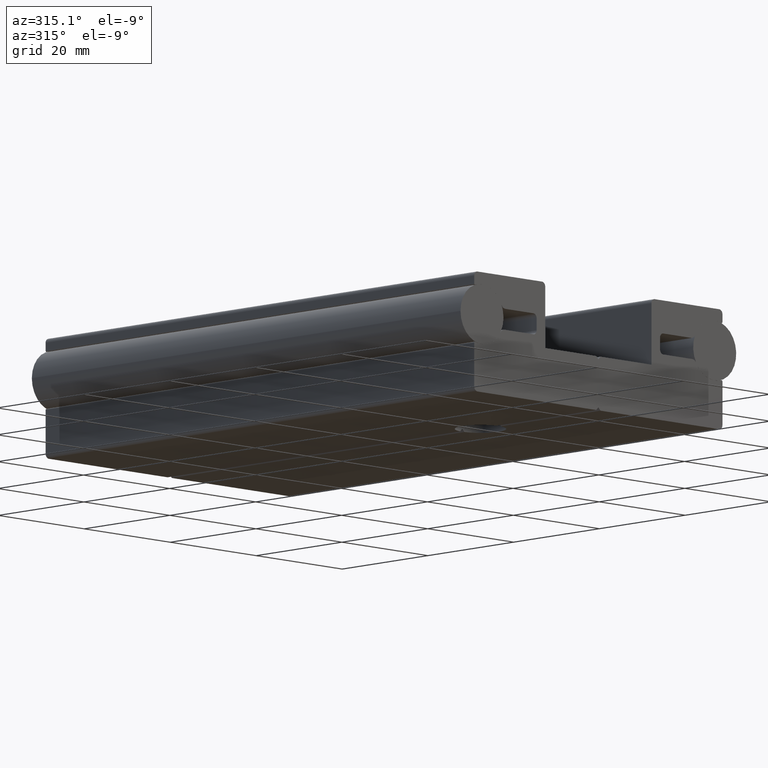
[diagram: clean part render]
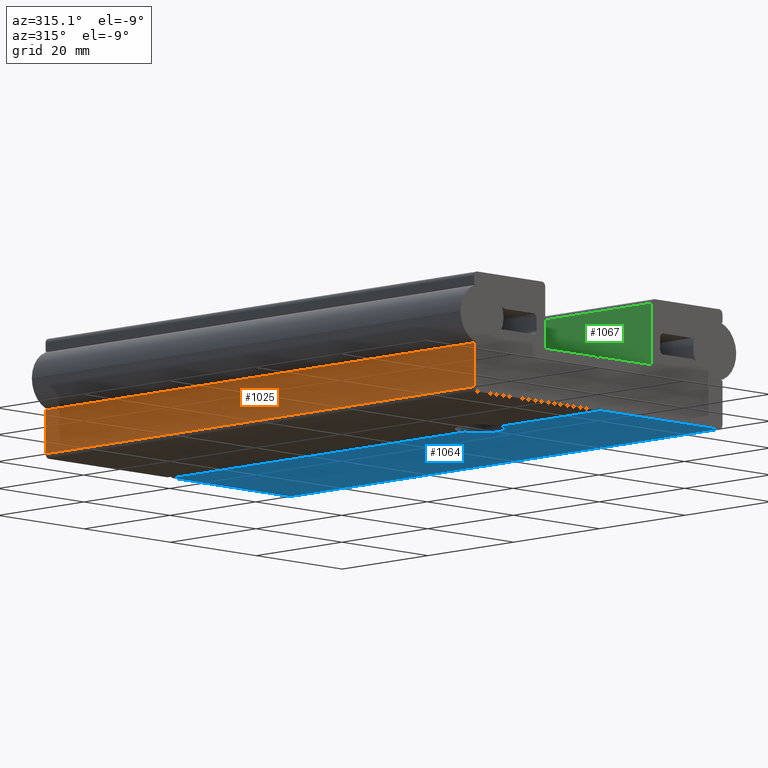
[diagram: same view with three faces highlighted in distinct colors, each labeled with its STEP entity id]
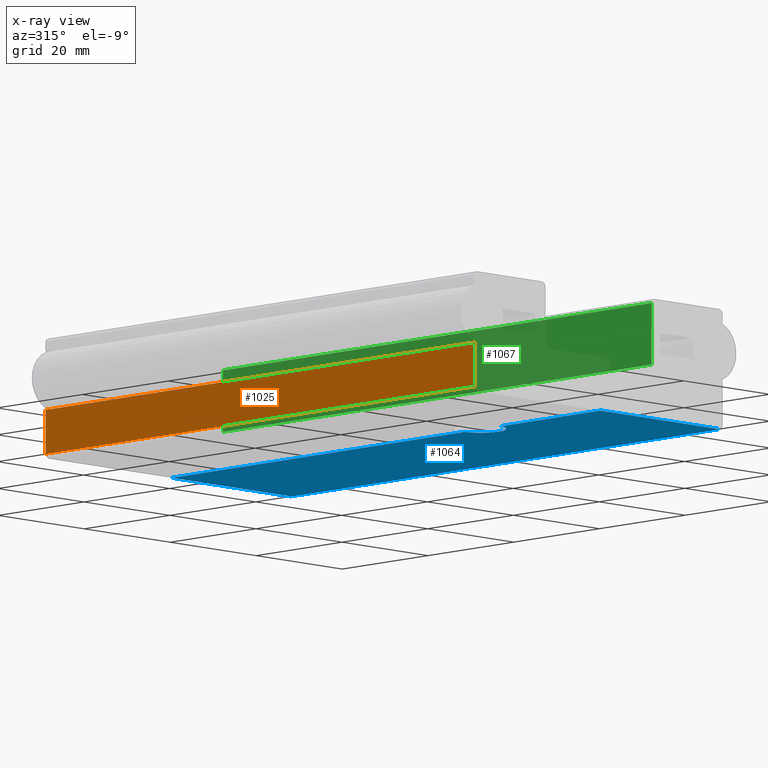
[diagram: x-ray of the same camera — body ghosted, the three highlighted faces saturated]
A machine part, auxiliary view with three faces highlighted in distinct colors.
The next image is the same camera in x-ray (body ghosted, the three faces saturated) — at least one of them is partly hidden behind the body in this view.
Their STEP definitions:

[orange] entity #1025 — the highlighted planar face has unit normal (-1, 0, 0).
#38=PLANE('',#1190);
#69=FACE_OUTER_BOUND('',#123,.T.);
#123=EDGE_LOOP('',(#770,#771,#772,#773));
#207=LINE('',#1749,#303);
#208=LINE('',#1754,#304);
#209=LINE('',#1755,#305);
#210=LINE('',#1756,#306);
#303=VECTOR('',#1392,10.);
#304=VECTOR('',#1397,1000.);
#305=VECTOR('',#1398,1000.);
#306=VECTOR('',#1399,1000.);
#485=VERTEX_POINT('',#1746);
#486=VERTEX_POINT('',#1748);
#487=VERTEX_POINT('',#1752);
#488=VERTEX_POINT('',#1753);
#598=EDGE_CURVE('',#485,#486,#207,.T.);
#600=EDGE_CURVE('',#487,#488,#208,.T.);
#601=EDGE_CURVE('',#487,#486,#209,.F.);
#602=EDGE_CURVE('',#485,#488,#210,.T.);
#770=ORIENTED_EDGE('',*,*,#600,.F.);
#771=ORIENTED_EDGE('',*,*,#601,.T.);
#772=ORIENTED_EDGE('',*,*,#598,.F.);
#773=ORIENTED_EDGE('',*,*,#602,.T.);
#1025=ADVANCED_FACE('',(#69),#38,.T.);
#1190=AXIS2_PLACEMENT_3D('',#1751,#1395,#1396);
#1392=DIRECTION('',(0.,0.,1.));
#1395=DIRECTION('center_axis',(-1.,0.,0.));
#1396=DIRECTION('ref_axis',(0.,0.,1.));
#1397=DIRECTION('',(0.,0.,-1.));
#1398=DIRECTION('',(0.,-1.,0.));
#1399=DIRECTION('',(0.,-1.,0.));
#1746=CARTESIAN_POINT('',(-28.85,100.,0.25));
#1748=CARTESIAN_POINT('',(-28.85,100.,7.55227324925881));
#1749=CARTESIAN_POINT('',(-28.85,100.,7.55227324925881));
#1751=CARTESIAN_POINT('Origin',(-28.85,10.,-0.5));
#1752=CARTESIAN_POINT('',(-28.85,0.,7.55227324925881));
#1753=CARTESIAN_POINT('',(-28.85,0.,0.25));
#1754=CARTESIAN_POINT('',(-28.85,0.,-0.5));
#1755=CARTESIAN_POINT('',(-28.85,10.,7.55227324925881));
#1756=CARTESIAN_POINT('',(-28.85,10.,0.25));

[blue] entity #1064 — the highlighted planar face has unit normal (0, 0, -1).
#56=PLANE('',#1251);
#108=FACE_OUTER_BOUND('',#162,.T.);
#162=EDGE_LOOP('',(#969,#970,#971,#972,#973,#974));
#186=LINE('',#1666,#282);
#204=LINE('',#1742,#300);
#214=LINE('',#1770,#310);
#262=LINE('',#1902,#358);
#263=LINE('',#1904,#359);
#282=VECTOR('',#1327,10.);
#300=VECTOR('',#1387,10.);
#310=VECTOR('',#1417,1000.);
#358=VECTOR('',#1571,10.);
#359=VECTOR('',#1574,10.);
#363=CIRCLE('',#1153,4.25);
#428=VERTEX_POINT('',#1616);
#429=VERTEX_POINT('',#1618);
#446=VERTEX_POINT('',#1665);
#482=VERTEX_POINT('',#1739);
#483=VERTEX_POINT('',#1741);
#491=VERTEX_POINT('',#1769);
#532=EDGE_CURVE('',#429,#428,#363,.T.);
#556=EDGE_CURVE('',#446,#429,#186,.T.);
#594=EDGE_CURVE('',#482,#483,#204,.T.);
#609=EDGE_CURVE('',#446,#491,#214,.T.);
#676=EDGE_CURVE('',#491,#482,#262,.T.);
#677=EDGE_CURVE('',#428,#483,#263,.T.);
#969=ORIENTED_EDGE('',*,*,#532,.T.);
#970=ORIENTED_EDGE('',*,*,#677,.T.);
#971=ORIENTED_EDGE('',*,*,#594,.F.);
#972=ORIENTED_EDGE('',*,*,#676,.F.);
#973=ORIENTED_EDGE('',*,*,#609,.F.);
#974=ORIENTED_EDGE('',*,*,#556,.T.);
#1064=ADVANCED_FACE('',(#108),#56,.T.);
#1153=AXIS2_PLACEMENT_3D('',#1619,#1283,#1284);
#1251=AXIS2_PLACEMENT_3D('',#1903,#1572,#1573);
#1283=DIRECTION('center_axis',(-3.05947702994146E-17,0.,1.));
#1284=DIRECTION('ref_axis',(1.,-1.80411241501588E-17,0.));
#1327=DIRECTION('',(0.,1.,0.));
#1387=DIRECTION('',(-1.,0.,0.));
#1417=DIRECTION('',(1.,0.,3.05947702994146E-17));
#1571=DIRECTION('',(0.,1.,0.));
#1572=DIRECTION('center_axis',(3.05947702994146E-17,0.,-1.));
#1573=DIRECTION('ref_axis',(-1.,0.,-3.05947702994146E-17));
#1574=DIRECTION('',(0.,1.,0.));
#1616=CARTESIAN_POINT('',(0.499999999999998,31.7204857540335,-0.5));
#1618=CARTESIAN_POINT('',(0.499999999999998,23.2795142459665,-0.5));
#1619=CARTESIAN_POINT('Origin',(9.0205620750794E-16,27.5,-0.5));
#1665=CARTESIAN_POINT('',(0.5,0.,-0.5));
#1666=CARTESIAN_POINT('',(0.499999999999998,0.,-0.5));
#1739=CARTESIAN_POINT('',(28.1,100.,-0.5));
#1741=CARTESIAN_POINT('',(0.499999999999998,100.,-0.5));
#1742=CARTESIAN_POINT('',(0.499999999999998,100.,-0.5));
#1769=CARTESIAN_POINT('',(28.1,0.,-0.5));
#1770=CARTESIAN_POINT('',(0.5,0.,-0.5));
#1902=CARTESIAN_POINT('',(28.1,0.,-0.5));
#1903=CARTESIAN_POINT('Origin',(0.5,10.,-0.5));
#1904=CARTESIAN_POINT('',(0.499999999999998,0.,-0.5));

[green] entity #1067 — the highlighted planar face has unit normal (-1, 0, 0).
#58=PLANE('',#1254);
#111=FACE_OUTER_BOUND('',#165,.T.);
#165=EDGE_LOOP('',(#983,#984,#985,#986));
#172=LINE('',#1638,#268);
#197=LINE('',#1706,#293);
#221=LINE('',#1805,#317);
#245=LINE('',#1869,#341);
#268=VECTOR('',#1303,10.);
#293=VECTOR('',#1358,10.);
#317=VECTOR('',#1446,1000.);
#341=VECTOR('',#1522,10.);
#436=VERTEX_POINT('',#1635);
#437=VERTEX_POINT('',#1637);
#465=VERTEX_POINT('',#1705);
#508=VERTEX_POINT('',#1803);
#542=EDGE_CURVE('',#436,#437,#172,.T.);
#576=EDGE_CURVE('',#437,#465,#197,.T.);
#627=EDGE_CURVE('',#508,#436,#221,.T.);
#659=EDGE_CURVE('',#508,#465,#245,.T.);
#983=ORIENTED_EDGE('',*,*,#627,.F.);
#984=ORIENTED_EDGE('',*,*,#659,.T.);
#985=ORIENTED_EDGE('',*,*,#576,.F.);
#986=ORIENTED_EDGE('',*,*,#542,.F.);
#1067=ADVANCED_FACE('',(#111),#58,.T.);
#1254=AXIS2_PLACEMENT_3D('',#1907,#1579,#1580);
#1303=DIRECTION('',(0.,1.,0.));
#1358=DIRECTION('',(0.,0.,1.));
#1446=DIRECTION('',(0.,0.,-1.));
#1522=DIRECTION('',(0.,1.,0.));
#1579=DIRECTION('center_axis',(-1.,0.,0.));
#1580=DIRECTION('ref_axis',(0.,0.,1.));
#1635=CARTESIAN_POINT('',(12.35,0.,8.5));
#1637=CARTESIAN_POINT('',(12.35,100.,8.5));
#1638=CARTESIAN_POINT('',(12.35,0.,8.5));
#1705=CARTESIAN_POINT('',(12.35,100.,18.75));
#1706=CARTESIAN_POINT('',(12.35,100.,18.75));
#1803=CARTESIAN_POINT('',(12.35,0.,18.75));
#1805=CARTESIAN_POINT('',(12.35,0.,8.5));
#1869=CARTESIAN_POINT('',(12.35,0.,18.75));
#1907=CARTESIAN_POINT('Origin',(12.35,10.,8.5));